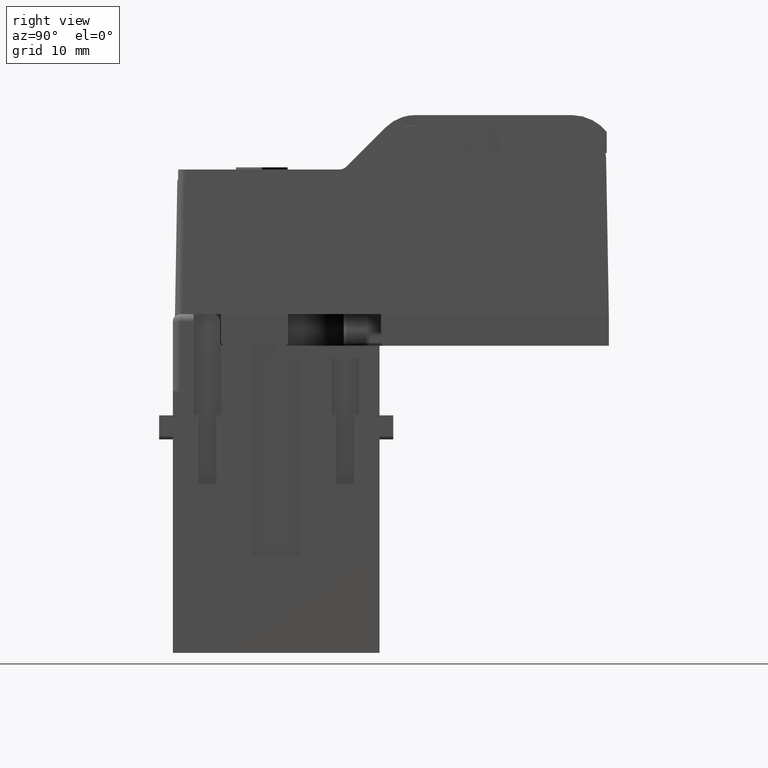
[diagram: clean part render]
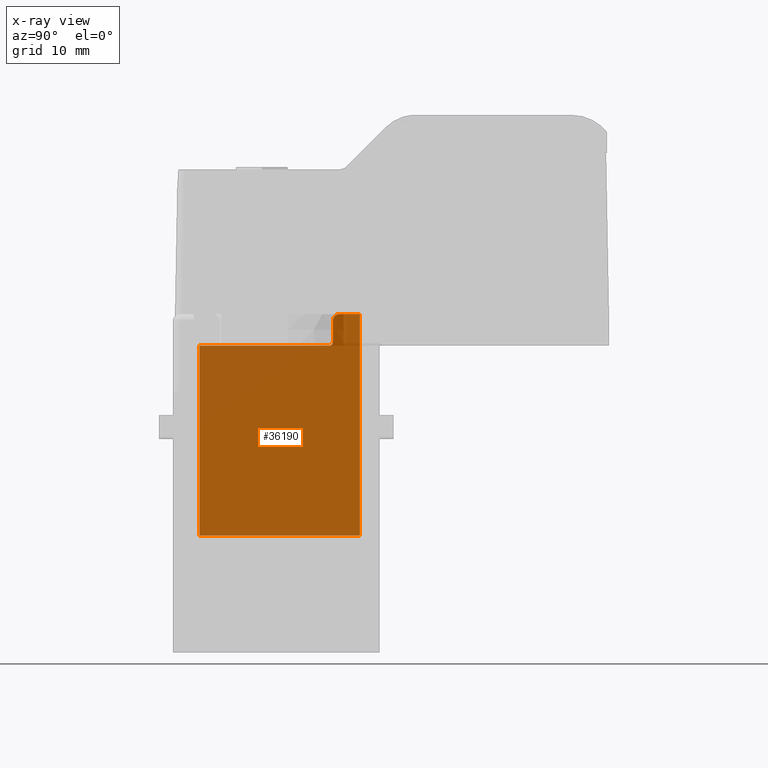
[diagram: x-ray — body ghosted, one internal face saturated and labeled with its STEP entity id]
A machine part, right view, then the same camera in x-ray: the body is ghosted and one INTERNAL B-rep face — a face not visible from any outside direction — is saturated and labeled: STEP entity #36190.
In plain terms, the highlighted planar face has unit normal (-1, 0, -0).
Its self-contained STEP definition (entity closure, byte-faithful):
#35460=CARTESIAN_POINT('',(54.0477350000001,91.757183,-8.80000000000104)
);
#35470=DIRECTION('',(1.,3.50115611867408E-30,4.07385286892287E-16));
#35480=DIRECTION('',(4.07385286892287E-16,-1.01024048883548E-14,-1.));
#35490=AXIS2_PLACEMENT_3D('',#35460,#35470,#35480);
#35500=PLANE('',#35490);
#35510=CARTESIAN_POINT('',(54.0477350000001,88.357183,-28.150076153871))
;
#35520=DIRECTION('',(0.,-1.,-1.11022302462516E-16));
#35530=VECTOR('',#35520,1.);
#35540=LINE('',#35510,#35530);
#35550=CARTESIAN_POINT('',(54.0477350000001,88.357183,-28.150076153871))
;
#35560=VERTEX_POINT('',#35550);
#35570=CARTESIAN_POINT('',(54.0477350000001,60.757183,-28.150076153871))
;
#35580=VERTEX_POINT('',#35570);
#35590=EDGE_CURVE('',#35560,#35580,#35540,.T.);
#35600=ORIENTED_EDGE('',*,*,#35590,.T.);
#35610=CARTESIAN_POINT('',(54.0477350000001,88.357183,-4.55868960884607)
);
#35620=DIRECTION('',(-5.11830140841055E-16,-1.11022302462516E-16,1.));
#35630=VECTOR('',#35620,1.);
#35640=LINE('',#35610,#35630);
#35650=CARTESIAN_POINT('',(54.0477350000001,88.357183,-9.300000000001));
#35660=VERTEX_POINT('',#35650);
#35670=EDGE_CURVE('',#35560,#35660,#35640,.T.);
#35680=ORIENTED_EDGE('',*,*,#35670,.F.);
#35690=CARTESIAN_POINT('',(54.0477350000001,88.857183,-9.300000000001));
#35700=DIRECTION('',(-1.,-5.17913063198694E-31,-4.42079756411823E-16));
#35710=DIRECTION('',(4.42079756411823E-16,1.11022302462516E-16,-1.));
#35720=AXIS2_PLACEMENT_3D('',#35690,#35700,#35710);
#35730=CIRCLE('',#35720,0.5);
#35740=CARTESIAN_POINT('',(54.0477350000001,88.857183,-8.800000000001));
#35750=VERTEX_POINT('',#35740);
#35760=EDGE_CURVE('',#35660,#35750,#35730,.T.);
#35770=ORIENTED_EDGE('',*,*,#35760,.F.);
#35780=CARTESIAN_POINT('',(54.0477350000001,88.357183,-8.800000000001));
#35790=DIRECTION('',(-6.14414995070402E-31,-1.,1.01024048883548E-14));
#35800=VECTOR('',#35790,1.);
#35810=LINE('',#35780,#35800);
#35820=CARTESIAN_POINT('',(54.0477350000001,91.9571830000001,
-8.80000000000103));
#35830=VERTEX_POINT('',#35820);
#35840=EDGE_CURVE('',#35830,#35750,#35810,.T.);
#35850=ORIENTED_EDGE('',*,*,#35840,.T.);
#35860=CARTESIAN_POINT('',(54.0477350000001,91.9571830000001,
-7.80000000000103));
#35870=DIRECTION('',(-1.,4.90807124289087E-32,-4.42079756411823E-16));
#35880=DIRECTION('',(4.42079756411823E-16,1.11022302462516E-16,-1.));
#35890=AXIS2_PLACEMENT_3D('',#35860,#35870,#35880);
#35900=CIRCLE('',#35890,1.);
#35910=CARTESIAN_POINT('',(54.0477350000001,92.9571830000001,
-7.80000000000103));
#35920=VERTEX_POINT('',#35910);
#35930=EDGE_CURVE('',#35920,#35830,#35900,.T.);
#35940=ORIENTED_EDGE('',*,*,#35930,.T.);
#35950=CARTESIAN_POINT('',(54.0477350000001,92.9571830000001,
-8.80000000000104));
#35960=DIRECTION('',(-4.07385286892287E-16,1.01024048883548E-14,1.));
#35970=VECTOR('',#35960,1.);
#35980=LINE('',#35950,#35970);
#35990=CARTESIAN_POINT('',(54.0477350000001,92.9571830000001,
-4.85000000000009));
#36000=VERTEX_POINT('',#35990);
#36010=EDGE_CURVE('',#35920,#36000,#35980,.T.);
#36020=ORIENTED_EDGE('',*,*,#36010,.F.);
#36030=CARTESIAN_POINT('',(54.0477350000001,58.057183,-4.85000000000009)
);
#36040=DIRECTION('',(3.54638497121421E-30,-1.,-1.11022302462513E-16));
#36050=VECTOR('',#36040,1.);
#36060=LINE('',#36030,#36050);
#36070=CARTESIAN_POINT('',(54.0477350000001,60.757183,-4.85000000000008)
);
#36080=VERTEX_POINT('',#36070);
#36090=EDGE_CURVE('',#36000,#36080,#36060,.T.);
#36100=ORIENTED_EDGE('',*,*,#36090,.F.);
#36110=CARTESIAN_POINT('',(54.0477350000001,60.757183,-4.55868960884607)
);
#36120=DIRECTION('',(3.00188077023795E-16,1.14423774522197E-17,-1.));
#36130=VECTOR('',#36120,1.);
#36140=LINE('',#36110,#36130);
#36150=EDGE_CURVE('',#36080,#35580,#36140,.T.);
#36160=ORIENTED_EDGE('',*,*,#36150,.F.);
#36170=EDGE_LOOP('',(#36160,#36100,#36020,#35940,#35850,#35770,#35680,
#35600));
#36180=FACE_OUTER_BOUND('',#36170,.T.);
#36190=ADVANCED_FACE('',(#36180),#35500,.F.);